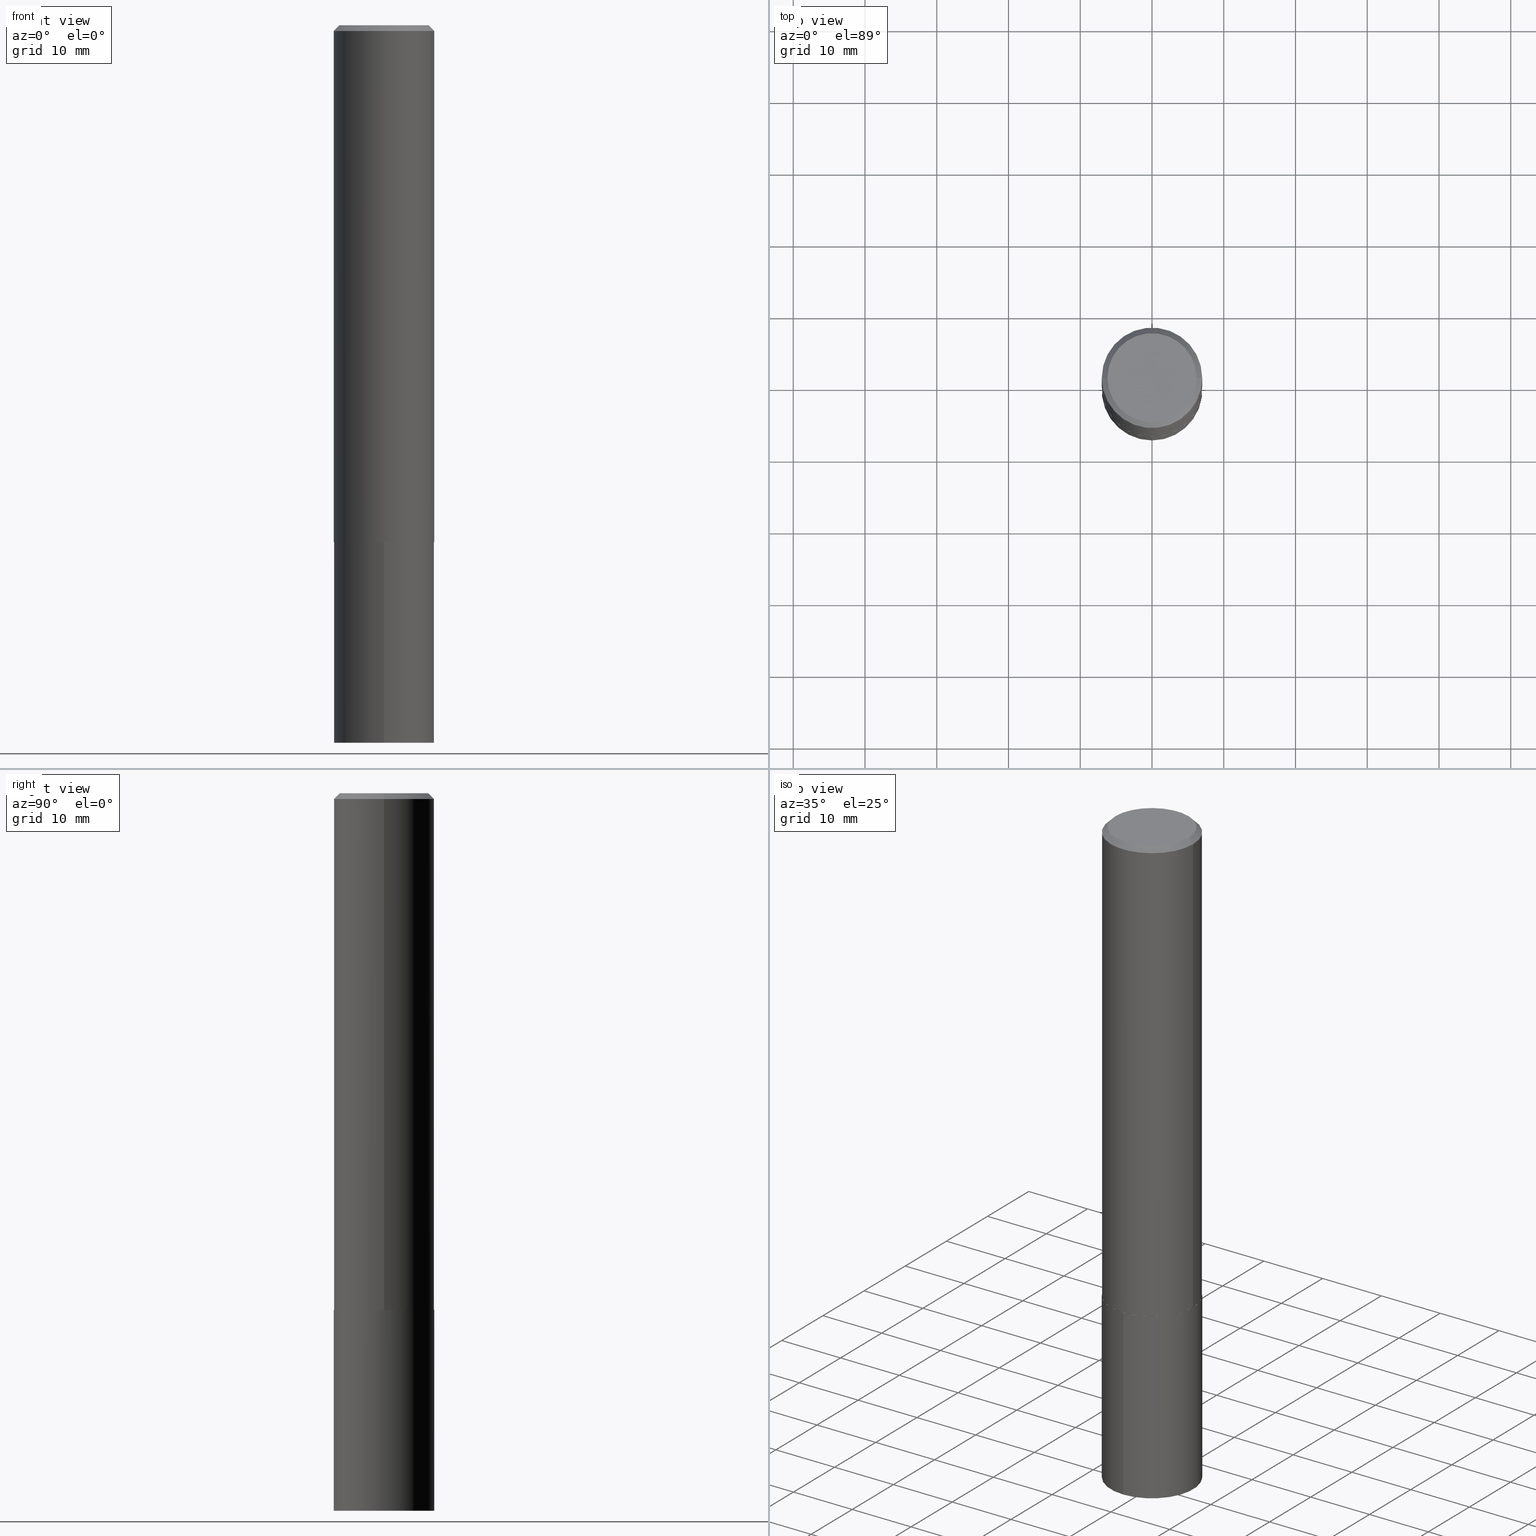
[diagram: canonical four-view strip — front | top / right | iso, engineering-drawing reading convention]
A machine part, canonical four-view strip (front | top / right | iso — engineering-drawing reading convention). The complete STEP part file that produces these views, byte-faithful:
ISO-10303-21;
HEADER;
FILE_DESCRIPTION (( 'STEP AP203' ),
    '1' );
FILE_NAME ('67172.STEP',
    '2024-04-23T12:52:25',
    ( '' ),
    ( '' ),
    'SwSTEP 2.0',
    'SolidWorks 2023',
    '' );
FILE_SCHEMA (( 'CONFIG_CONTROL_DESIGN' ));
ENDSEC;

DATA;
#1 = ORIENTED_EDGE ( 'NONE', *, *, #174, .T. ) ;
#2 = CARTESIAN_POINT ( 'NONE',  ( 1.958255779754932830E-15, 0.2755999999999901307, -2.835000000000000853 ) ) ;
#3 = CARTESIAN_POINT ( 'NONE',  ( 6.932904065534858171E-29, -9.898349595620313354E-15, -2.834999999999998632 ) ) ;
#4 = AXIS2_PLACEMENT_3D ( 'NONE', #164, #171, #78 ) ;
#5 = AXIS2_PLACEMENT_3D ( 'NONE', #157, #236, #239 ) ;
#6 = ADVANCED_BREP_SHAPE_REPRESENTATION ( '67172', ( #264, #17, #365 ), #95 ) ;
#7 = EDGE_CURVE ( 'NONE', #54, #135, #75, .T. ) ;
#8 = EDGE_CURVE ( 'NONE', #281, #116, #339, .T. ) ;
#9 = FACE_OUTER_BOUND ( 'NONE', #255, .T. ) ;
#10 = DIRECTION ( 'NONE',  ( 2.445468806185136597E-29, -3.491481338843145583E-15, -1.000000000000000000 ) ) ;
#11 = DIRECTION ( 'NONE',  ( -0.7071067811865450192, 2.468850131082230634E-15, -0.7071067811865500152 ) ) ;
#12 = DESIGN_CONTEXT ( 'detailed design', #21, 'design' ) ;
#13 = CARTESIAN_POINT ( 'NONE',  ( -0.2756000000000000116, 1.815395722131486248E-15, -0.03125000000000022204 ) ) ;
#14 = CARTESIAN_POINT ( 'NONE',  ( 7.642090019328606165E-31, -1.091087918388490760E-16, -0.03125000000000022204 ) ) ;
#15 = DIRECTION ( 'NONE',  ( -2.445991184823511877E-29, 3.490733262901045869E-15, 1.000000000000000000 ) ) ;
#16 = AXIS2_PLACEMENT_3D ( 'NONE', #289, #96, #211 ) ;
#17 = MANIFOLD_SOLID_BREP ( 'Body-Move/Copy2[2]', #168 ) ;
#18 = DIRECTION ( 'NONE',  ( 1.000000000000000000, -6.982962677686264344E-15, 0.000000000000000000 ) ) ;
#19 = VECTOR ( 'NONE', #11, 39.37007874015748143 ) ;
#20 = CARTESIAN_POINT ( 'NONE',  ( -1.924504513970265534E-15, -0.2756000000000099481, -2.834999999999998632 ) ) ;
#21 = APPLICATION_CONTEXT ( 'configuration controlled 3d designs of mechanical parts and assemblies' ) ;
#22 = CARTESIAN_POINT ( 'NONE',  ( -0.2751000000000005663, -7.940997302370164885E-15, -2.834999999999998632 ) ) ;
#23 = EDGE_CURVE ( 'NONE', #348, #245, #232, .T. ) ;
#24 = DATE_TIME_ROLE ( 'classification_date' ) ;
#25 = CARTESIAN_POINT ( 'NONE',  ( 0.2756000000000001782, -1.924504513970336532E-15, 1.343874319409360828E-29 ) ) ;
#26 = CC_DESIGN_APPROVAL ( #307, ( #316 ) ) ;
#27 = EDGE_CURVE ( 'NONE', #325, #135, #144, .T. ) ;
#28 = DIRECTION ( 'NONE',  ( -2.445468806185136877E-29, 3.491481338843145188E-15, 1.000000000000000000 ) ) ;
#29 = PERSON_AND_ORGANIZATION_ROLE ( 'design_owner' ) ;
#30 = VERTEX_POINT ( 'NONE', #2 ) ;
#31 = COORDINATED_UNIVERSAL_TIME_OFFSET ( 5, 0, .BEHIND. ) ;
#32 = ORIENTED_EDGE ( 'NONE', *, *, #154, .T. ) ;
#33 = CC_DESIGN_APPROVAL ( #205, ( #99 ) ) ;
#34 = DIRECTION ( 'NONE',  ( 1.000000000000000000, -6.982962677686268288E-15, 0.000000000000000000 ) ) ;
#35 = DIRECTION ( 'NONE',  ( -2.445991184823511877E-29, 3.490733262901046264E-15, 1.000000000000000000 ) ) ;
#36 = FACE_OUTER_BOUND ( 'NONE', #143, .T. ) ;
#37 = AXIS2_PLACEMENT_3D ( 'NONE', #229, #341, #92 ) ;
#38 = AXIS2_PLACEMENT_3D ( 'NONE', #338, #10, #231 ) ;
#39 = CARTESIAN_POINT ( 'NONE',  ( 0.000000000000000000, 0.000000000000000000, 0.000000000000000000 ) ) ;
#40 = CYLINDRICAL_SURFACE ( 'NONE', #292, 0.2756000000000000116 ) ;
#41 = CARTESIAN_POINT ( 'NONE',  ( 0.2756000000000003447, -1.182110836892123233E-14, -2.834499999999999353 ) ) ;
#42 = VECTOR ( 'NONE', #265, 39.37007874015748143 ) ;
#43 = CARTESIAN_POINT ( 'NONE',  ( 0.2443500000000000116, -1.838112362890078477E-15, 4.825108388652965328E-18 ) ) ;
#44 = CARTESIAN_POINT ( 'NONE',  ( -0.2756000000000003447, -7.938348075196056050E-15, -2.834499999999999353 ) ) ;
#45 = VERTEX_POINT ( 'NONE', #138 ) ;
#46 = PLANE ( 'NONE',  #266 ) ;
#47 = AXIS2_PLACEMENT_3D ( 'NONE', #346, #324, #215 ) ;
#48 =( NAMED_UNIT ( * ) PLANE_ANGLE_UNIT ( ) SI_UNIT ( $, .RADIAN. ) );
#49 = CARTESIAN_POINT ( 'NONE',  ( 0.2751000000000005663, -1.181936262825181003E-14, -2.834999999999998632 ) ) ;
#50 = CC_DESIGN_PERSON_AND_ORGANIZATION_ASSIGNMENT ( #334, #299, ( #316 ) ) ;
#51 = EDGE_CURVE ( 'NONE', #362, #285, #349, .T. ) ;
#52 = CALENDAR_DATE ( 2024, 23, 4 ) ;
#53 = ORIENTED_EDGE ( 'NONE', *, *, #217, .F. ) ;
#54 = VERTEX_POINT ( 'NONE', #345 ) ;
#55 = MECHANICAL_CONTEXT ( 'NONE', #343, 'mechanical' ) ;
#56 = EDGE_LOOP ( 'NONE', ( #106, #105, #309, #162 ) ) ;
#57 = ORIENTED_EDGE ( 'NONE', *, *, #280, .T. ) ;
#58 = PERSON_AND_ORGANIZATION ( #127, #66 ) ;
#59 = ORIENTED_EDGE ( 'NONE', *, *, #241, .F. ) ;
#60 = AXIS2_PLACEMENT_3D ( 'NONE', #64, #35, #117 ) ;
#61 = DIMENSIONAL_EXPONENTS ( 1.000000000000000000, 0.000000000000000000, 0.000000000000000000, 0.000000000000000000, 0.000000000000000000, 0.000000000000000000, 0.000000000000000000 ) ;
#62 = ADVANCED_FACE ( 'NONE', ( #149 ), #204, .T. ) ;
#63 = DIRECTION ( 'NONE',  ( -2.445468806185136597E-29, 3.491481338843145583E-15, 1.000000000000000000 ) ) ;
#64 = CARTESIAN_POINT ( 'NONE',  ( 6.932904065534861534E-29, -9.898349595620316510E-15, -2.834999999999999520 ) ) ;
#65 = DIRECTION ( 'NONE',  ( 1.000000000000000000, -6.982962677686266711E-15, 4.876118653798672988E-29 ) ) ;
#66 = ORGANIZATION ( 'UNSPECIFIED', 'UNSPECIFIED', '' ) ;
#67 = EDGE_CURVE ( 'NONE', #285, #362, #132, .T. ) ;
#68 = LINE ( 'NONE', #263, #42 ) ;
#69 = CARTESIAN_POINT ( 'NONE',  ( 6.932904065534861534E-29, -9.898349595620316510E-15, -2.834999999999999520 ) ) ;
#70 = FACE_OUTER_BOUND ( 'NONE', #111, .T. ) ;
#71 = DIRECTION ( 'NONE',  ( -1.000000000000000000, 6.982962677686265922E-15, -4.876176775795935793E-29 ) ) ;
#72 = EDGE_CURVE ( 'NONE', #30, #45, #333, .T. ) ;
#73 = ORIENTED_EDGE ( 'NONE', *, *, #51, .T. ) ;
#74 = LENGTH_MEASURE_WITH_UNIT ( LENGTH_MEASURE( 0.02539999999999999897 ), #187 );
#75 = CIRCLE ( 'NONE', #103, 0.2756000000000000116 ) ;
#76 = CC_DESIGN_SECURITY_CLASSIFICATION ( #99, ( #316 ) ) ;
#77 = DIRECTION ( 'NONE',  ( 1.000000000000000000, -6.982962677686264344E-15, 0.000000000000000000 ) ) ;
#78 = DIRECTION ( 'NONE',  ( -6.982962677686265922E-15, -1.000000000000000000, 3.964946289788480896E-15 ) ) ;
#79 = APPROVAL_STATUS ( 'not_yet_approved' ) ;
#80 = ORIENTED_EDGE ( 'NONE', *, *, #320, .T. ) ;
#81 = SECURITY_CLASSIFICATION_LEVEL ( 'unclassified' ) ;
#82 = ORIENTED_EDGE ( 'NONE', *, *, #7, .T. ) ;
#83 = AXIS2_PLACEMENT_3D ( 'NONE', #287, #94, #261 ) ;
#84 = PRODUCT_RELATED_PRODUCT_CATEGORY ( 'detail', '', ( #218 ) ) ;
#85 = CALENDAR_DATE ( 2024, 23, 4 ) ;
#86 = EDGE_LOOP ( 'NONE', ( #296, #32, #57, #53 ) ) ;
#87 = DATE_AND_TIME ( #107, #158 ) ;
#88 = ORIENTED_EDGE ( 'NONE', *, *, #72, .T. ) ;
#89 = DIRECTION ( 'NONE',  ( -6.982962677686265922E-15, -1.000000000000000000, 3.964946289788480896E-15 ) ) ;
#90 = VECTOR ( 'NONE', #321, 39.37007874015748143 ) ;
#91 = FACE_OUTER_BOUND ( 'NONE', #198, .T. ) ;
#92 = DIRECTION ( 'NONE',  ( 1.000000000000000000, -6.982962677686266711E-15, 4.876118653798672988E-29 ) ) ;
#93 = UNCERTAINTY_MEASURE_WITH_UNIT (LENGTH_MEASURE( 1.000000000000000082E-05 ), #185, 'distance_accuracy_value', 'NONE');
#94 = DIRECTION ( 'NONE',  ( 2.445468806185136597E-29, -3.491481338843145583E-15, -1.000000000000000000 ) ) ;
#95 =( GEOMETRIC_REPRESENTATION_CONTEXT ( 3 ) GLOBAL_UNCERTAINTY_ASSIGNED_CONTEXT ( ( #93 ) ) GLOBAL_UNIT_ASSIGNED_CONTEXT ( ( #185, #48, #298 ) ) REPRESENTATION_CONTEXT ( 'NONE', 'WORKASPACE' ) );
#96 = DIRECTION ( 'NONE',  ( -2.438088387897960049E-29, 3.491481338843145188E-15, 1.000000000000000000 ) ) ;
#97 = ADVANCED_FACE ( 'NONE', ( #291 ), #40, .T. ) ;
#98 = DIRECTION ( 'NONE',  ( -2.445991184823512157E-29, 3.490733262901045869E-15, 1.000000000000000000 ) ) ;
#99 = SECURITY_CLASSIFICATION ( '', '', #81 ) ;
#100 = DIRECTION ( 'NONE',  ( -0.7071067811870304087, 7.493145998872099120E-15, 0.7071067811860646257 ) ) ;
#101 = DIRECTION ( 'NONE',  ( -2.445468806185136597E-29, 3.491481338843145583E-15, 1.000000000000000000 ) ) ;
#102 = DIRECTION ( 'NONE',  ( -2.445468806185136597E-29, 3.491481338843145583E-15, 1.000000000000000000 ) ) ;
#103 = AXIS2_PLACEMENT_3D ( 'NONE', #275, #332, #200 ) ;
#104 = CIRCLE ( 'NONE', #210, 0.2756000000000000116 ) ;
#105 = ORIENTED_EDGE ( 'NONE', *, *, #189, .T. ) ;
#106 = ORIENTED_EDGE ( 'NONE', *, *, #206, .T. ) ;
#107 = CALENDAR_DATE ( 2024, 23, 4 ) ;
#108 = EDGE_LOOP ( 'NONE', ( #306, #304, #301, #82 ) ) ;
#109 = AXIS2_PLACEMENT_3D ( 'NONE', #277, #256, #34 ) ;
#110 = DATE_AND_TIME ( #137, #133 ) ;
#111 = EDGE_LOOP ( 'NONE', ( #131, #192, #1, #360 ) ) ;
#112 = LOCAL_TIME ( 8, 52, 25.00000000000000000, #31 ) ;
#113 = DATE_AND_TIME ( #52, #170 ) ;
#114 = ORIENTED_EDGE ( 'NONE', *, *, #206, .F. ) ;
#115 = CC_DESIGN_PERSON_AND_ORGANIZATION_ASSIGNMENT ( #284, #139, ( #258 ) ) ;
#116 = VERTEX_POINT ( 'NONE', #311 ) ;
#117 = DIRECTION ( 'NONE',  ( -6.982962677686265922E-15, -1.000000000000000000, 3.964946289788480896E-15 ) ) ;
#118 = CARTESIAN_POINT ( 'NONE',  ( 6.931681331131768733E-29, -9.896603854950894217E-15, -2.834499999999999353 ) ) ;
#119 = DIRECTION ( 'NONE',  ( 1.000000000000000000, -6.982962677686267499E-15, 4.876176775795935793E-29 ) ) ;
#120 = DIRECTION ( 'NONE',  ( -2.445468806185136597E-29, 3.491481338843145583E-15, 1.000000000000000000 ) ) ;
#121 = APPROVAL_PERSON_ORGANIZATION ( #361, #307, #166 ) ;
#122 = CARTESIAN_POINT ( 'NONE',  ( 6.932904065534861534E-29, -9.898349595620316510E-15, -2.834999999999999520 ) ) ;
#123 = CC_DESIGN_PERSON_AND_ORGANIZATION_ASSIGNMENT ( #305, #254, ( #99 ) ) ;
#124 = CARTESIAN_POINT ( 'NONE',  ( 1.958255779754919025E-15, 0.2755999999999862449, -3.937000000000001609 ) ) ;
#125 = ORIENTED_EDGE ( 'NONE', *, *, #27, .T. ) ;
#126 = DIRECTION ( 'NONE',  ( 2.438088387897960049E-29, -3.491481338843145188E-15, -1.000000000000000000 ) ) ;
#127 = PERSON ( 'UNSPECIFIED', 'UNSPECIFIED', 'UNSPECIFIED', ('UNSPECIFIED'), ('UNSPECIFIED'), ('UNSPECIFIED') ) ;
#128 = CARTESIAN_POINT ( 'NONE',  ( 0.2756000000000003447, -1.182110836892123233E-14, -2.834499999999999353 ) ) ;
#129 = CARTESIAN_POINT ( 'NONE',  ( 6.931681331131768733E-29, -9.896603854950894217E-15, -2.834499999999999353 ) ) ;
#130 = COORDINATED_UNIVERSAL_TIME_OFFSET ( 5, 0, .BEHIND. ) ;
#131 = ORIENTED_EDGE ( 'NONE', *, *, #238, .F. ) ;
#132 = CIRCLE ( 'NONE', #37, 0.2443500000000000116 ) ;
#133 = LOCAL_TIME ( 8, 52, 25.00000000000000000, #130 ) ;
#134 = DATE_AND_TIME ( #85, #112 ) ;
#135 = VERTEX_POINT ( 'NONE', #209 ) ;
#136 = EDGE_CURVE ( 'NONE', #245, #348, #240, .T. ) ;
#137 = CALENDAR_DATE ( 2024, 23, 4 ) ;
#138 = CARTESIAN_POINT ( 'NONE',  ( -1.924504513970265534E-15, -0.2756000000000099481, -2.834999999999998632 ) ) ;
#139 = PERSON_AND_ORGANIZATION_ROLE ( 'creator' ) ;
#140 = ORIENTED_EDGE ( 'NONE', *, *, #72, .F. ) ;
#141 = APPROVAL_DATE_TIME ( #110, #307 ) ;
#142 = CIRCLE ( 'NONE', #60, 0.2756000000000000116 ) ;
#143 = EDGE_LOOP ( 'NONE', ( #250, #80, #125, #358 ) ) ;
#144 = LINE ( 'NONE', #25, #282 ) ;
#145 = FACE_OUTER_BOUND ( 'NONE', #86, .T. ) ;
#146 = FACE_OUTER_BOUND ( 'NONE', #108, .T. ) ;
#147 = AXIS2_PLACEMENT_3D ( 'NONE', #227, #190, #65 ) ;
#148 = AXIS2_PLACEMENT_3D ( 'NONE', #129, #182, #18 ) ;
#149 = FACE_OUTER_BOUND ( 'NONE', #300, .T. ) ;
#150 = ADVANCED_FACE ( 'NONE', ( #91 ), #202, .F. ) ;
#151 = CARTESIAN_POINT ( 'NONE',  ( 0.000000000000000000, 0.000000000000000000, 0.000000000000000000 ) ) ;
#152 = CYLINDRICAL_SURFACE ( 'NONE', #253, 0.2756000000000001782 ) ;
#153 = AXIS2_PLACEMENT_3D ( 'NONE', #69, #312, #176 ) ;
#154 = EDGE_CURVE ( 'NONE', #362, #135, #319, .T. ) ;
#155 = DIRECTION ( 'NONE',  ( -2.445468806185136597E-29, 3.491481338843145583E-15, 1.000000000000000000 ) ) ;
#156 = ORIENTED_EDGE ( 'NONE', *, *, #241, .T. ) ;
#157 = CARTESIAN_POINT ( 'NONE',  ( 6.932904065534861534E-29, -9.898349595620316510E-15, -2.834999999999999520 ) ) ;
#158 = LOCAL_TIME ( 8, 52, 25.00000000000000000, #249 ) ;
#159 = AXIS2_PLACEMENT_3D ( 'NONE', #262, #178, #173 ) ;
#160 = CARTESIAN_POINT ( 'NONE',  ( 4.177610574502128489E-29, -2.155095880247408992E-14, -3.937000000000000277 ) ) ;
#161 = APPROVAL_ROLE ( '' ) ;
#162 = ORIENTED_EDGE ( 'NONE', *, *, #322, .F. ) ;
#163 = AXIS2_PLACEMENT_3D ( 'NONE', #352, #155, #77 ) ;
#164 = CARTESIAN_POINT ( 'NONE',  ( 9.628386351210373593E-29, -1.374513765133727185E-14, -3.937000000000000721 ) ) ;
#165 = ORIENTED_EDGE ( 'NONE', *, *, #136, .F. ) ;
#166 = APPROVAL_ROLE ( '' ) ;
#167 = ORIENTED_EDGE ( 'NONE', *, *, #136, .T. ) ;
#168 = CLOSED_SHELL ( 'NONE', ( #237, #62, #228, #150, #356, #175, #207, #271 ) ) ;
#169 = APPROVAL_DATE_TIME ( #134, #257 ) ;
#170 = LOCAL_TIME ( 8, 52, 25.00000000000000000, #366 ) ;
#171 = DIRECTION ( 'NONE',  ( -2.445991184823511877E-29, 3.490733262901046264E-15, 1.000000000000000000 ) ) ;
#172 = LINE ( 'NONE', #41, #363 ) ;
#173 = DIRECTION ( 'NONE',  ( -6.982962677686265922E-15, -1.000000000000000000, 3.964946289788480896E-15 ) ) ;
#174 = EDGE_CURVE ( 'NONE', #245, #325, #172, .T. ) ;
#175 = ADVANCED_FACE ( 'NONE', ( #36 ), #152, .T. ) ;
#176 = DIRECTION ( 'NONE',  ( -6.982962677686265922E-15, -1.000000000000000000, 3.964946289788480896E-15 ) ) ;
#177 = AXIS2_PLACEMENT_3D ( 'NONE', #3, #63, #259 ) ;
#178 = DIRECTION ( 'NONE',  ( -2.445991184823511877E-29, 3.490733262901046264E-15, 1.000000000000000000 ) ) ;
#179 = DIRECTION ( 'NONE',  ( 0.7071067811865450192, -7.319954787623246579E-15, -0.7071067811865500152 ) ) ;
#180 = PLANE ( 'NONE',  #222 ) ;
#181 = ORIENTED_EDGE ( 'NONE', *, *, #238, .T. ) ;
#182 = DIRECTION ( 'NONE',  ( -2.445468806185136597E-29, 3.491481338843145583E-15, 1.000000000000000000 ) ) ;
#183 = VERTEX_POINT ( 'NONE', #288 ) ;
#184 = FACE_OUTER_BOUND ( 'NONE', #337, .T. ) ;
#185 =( CONVERSION_BASED_UNIT ( 'INCH', #74 ) LENGTH_UNIT ( ) NAMED_UNIT ( #61 ) );
#186 = CC_DESIGN_APPROVAL ( #257, ( #258 ) ) ;
#187 =( LENGTH_UNIT ( ) NAMED_UNIT ( * ) SI_UNIT ( $, .METRE. ) );
#188 = APPLICATION_PROTOCOL_DEFINITION ( 'international standard', 'config_control_design', 1994, #21 ) ;
#189 = EDGE_CURVE ( 'NONE', #281, #30, #68, .T. ) ;
#190 = DIRECTION ( 'NONE',  ( -2.445468806185136597E-29, 3.491481338843145583E-15, 1.000000000000000000 ) ) ;
#191 = APPROVAL_STATUS ( 'not_yet_approved' ) ;
#192 = ORIENTED_EDGE ( 'NONE', *, *, #23, .T. ) ;
#193 = AXIS2_PLACEMENT_3D ( 'NONE', #151, #120, #119 ) ;
#194 = CONICAL_SURFACE ( 'NONE', #326, 0.2756000000000003447, 0.7853981633981311772 ) ;
#195 = DIRECTION ( 'NONE',  ( 0.000000000000000000, 0.000000000000000000, 1.000000000000000000 ) ) ;
#196 = ORIENTED_EDGE ( 'NONE', *, *, #8, .F. ) ;
#197 = APPLICATION_PROTOCOL_DEFINITION ( 'international standard', 'config_control_design', 1994, #343 ) ;
#198 = EDGE_LOOP ( 'NONE', ( #165, #220 ) ) ;
#199 = APPROVAL_DATE_TIME ( #87, #205 ) ;
#200 = DIRECTION ( 'NONE',  ( 1.000000000000000000, -6.982962677686267499E-15, 0.000000000000000000 ) ) ;
#201 = VECTOR ( 'NONE', #98, 39.37007874015748143 ) ;
#202 = PLANE ( 'NONE',  #16 ) ;
#203 = EDGE_CURVE ( 'NONE', #45, #30, #142, .T. ) ;
#204 = CYLINDRICAL_SURFACE ( 'NONE', #193, 0.2756000000000001782 ) ;
#205 = APPROVAL ( #336, 'UNSPECIFIED' ) ;
#206 = EDGE_CURVE ( 'NONE', #116, #281, #310, .T. ) ;
#207 = ADVANCED_FACE ( 'NONE', ( #146 ), #351, .T. ) ;
#208 = CARTESIAN_POINT ( 'NONE',  ( 0.2756000000000000116, -1.999862040024683603E-15, -0.03125000000000022204 ) ) ;
#209 = CARTESIAN_POINT ( 'NONE',  ( 0.2756000000000000116, -2.033613305809184449E-15, -0.03125000000000022204 ) ) ;
#210 = AXIS2_PLACEMENT_3D ( 'NONE', #14, #101, #293 ) ;
#211 = DIRECTION ( 'NONE',  ( 1.000000000000000000, -6.982962677686265922E-15, 4.876176775795935793E-29 ) ) ;
#212 = CARTESIAN_POINT ( 'NONE',  ( -5.899826025441373866E-47, 8.423387948417039198E-33, 2.412554194320285792E-18 ) ) ;
#213 = FACE_OUTER_BOUND ( 'NONE', #279, .T. ) ;
#214 = CARTESIAN_POINT ( 'NONE',  ( -0.2756000000000001782, 1.958255779754837378E-15, -1.355658510874252848E-29 ) ) ;
#215 = DIRECTION ( 'NONE',  ( -6.982962677686265922E-15, -1.000000000000000000, 3.964946289788480896E-15 ) ) ;
#216 = DIRECTION ( 'NONE',  ( 1.000000000000000000, -6.982962677686264344E-15, 0.000000000000000000 ) ) ;
#217 = EDGE_CURVE ( 'NONE', #285, #54, #313, .T. ) ;
#218 = PRODUCT ( '67172', '67172', '', ( #55 ) ) ;
#219 = ORIENTED_EDGE ( 'NONE', *, *, #174, .F. ) ;
#220 = ORIENTED_EDGE ( 'NONE', *, *, #23, .F. ) ;
#221 = VECTOR ( 'NONE', #179, 39.37007874015748143 ) ;
#222 = AXIS2_PLACEMENT_3D ( 'NONE', #160, #15, #242 ) ;
#223 = COORDINATED_UNIVERSAL_TIME_OFFSET ( 5, 0, .BEHIND. ) ;
#224 = EDGE_LOOP ( 'NONE', ( #114, #196 ) ) ;
#225 = PERSON_AND_ORGANIZATION ( #127, #66 ) ;
#226 = EDGE_LOOP ( 'NONE', ( #353, #88 ) ) ;
#227 = CARTESIAN_POINT ( 'NONE',  ( -1.179965205088274773E-46, 1.684677589683407840E-32, 4.825108388640571583E-18 ) ) ;
#228 = ADVANCED_FACE ( 'NONE', ( #9 ), #194, .T. ) ;
#229 = CARTESIAN_POINT ( 'NONE',  ( -1.179965205088274773E-46, 1.684677589683407840E-32, 4.825108388640571583E-18 ) ) ;
#230 = DIRECTION ( 'NONE',  ( 1.000000000000000000, -6.982962677686264344E-15, 0.000000000000000000 ) ) ;
#231 = DIRECTION ( 'NONE',  ( -1.000000000000000000, 6.982962677686267499E-15, 0.000000000000000000 ) ) ;
#232 = CIRCLE ( 'NONE', #109, 0.2751000000000005663 ) ;
#233 = DIRECTION ( 'NONE',  ( -2.445468806185136597E-29, 3.491481338843145583E-15, 1.000000000000000000 ) ) ;
#234 = AXIS2_PLACEMENT_3D ( 'NONE', #243, #102, #216 ) ;
#235 = LINE ( 'NONE', #214, #90 ) ;
#236 = DIRECTION ( 'NONE',  ( 2.445991184823511877E-29, -3.490733262901045869E-15, -1.000000000000000000 ) ) ;
#237 = ADVANCED_FACE ( 'NONE', ( #145 ), #355, .T. ) ;
#238 = EDGE_CURVE ( 'NONE', #348, #183, #272, .T. ) ;
#239 = DIRECTION ( 'NONE',  ( 6.982962677686265922E-15, 1.000000000000000000, -3.490733262901045869E-15 ) ) ;
#240 = CIRCLE ( 'NONE', #177, 0.2751000000000005663 ) ;
#241 = EDGE_CURVE ( 'NONE', #325, #183, #283, .T. ) ;
#242 = DIRECTION ( 'NONE',  ( -6.982962677686265922E-15, -1.000000000000000000, 3.490733262901045869E-15 ) ) ;
#243 = CARTESIAN_POINT ( 'NONE',  ( 6.931681331131768733E-29, -9.896603854950894217E-15, -2.834499999999999353 ) ) ;
#244 = PERSON_AND_ORGANIZATION_ROLE ( 'design_supplier' ) ;
#245 = VERTEX_POINT ( 'NONE', #49 ) ;
#246 = APPROVAL_ROLE ( '' ) ;
#247 = ORIENTED_EDGE ( 'NONE', *, *, #67, .T. ) ;
#248 = PRODUCT_DEFINITION_SHAPE ( 'NONE', 'NONE',  #258 ) ;
#249 = COORDINATED_UNIVERSAL_TIME_OFFSET ( 5, 0, .BEHIND. ) ;
#250 = ORIENTED_EDGE ( 'NONE', *, *, #331, .F. ) ;
#251 = DATE_TIME_ROLE ( 'creation_date' ) ;
#252 = ORIENTED_EDGE ( 'NONE', *, *, #8, .T. ) ;
#253 = AXIS2_PLACEMENT_3D ( 'NONE', #39, #233, #290 ) ;
#254 = PERSON_AND_ORGANIZATION_ROLE ( 'classification_officer' ) ;
#255 = EDGE_LOOP ( 'NONE', ( #167, #181, #59, #219 ) ) ;
#256 = DIRECTION ( 'NONE',  ( -2.445468806185136597E-29, 3.491481338843145583E-15, 1.000000000000000000 ) ) ;
#257 = APPROVAL ( #79, 'UNSPECIFIED' ) ;
#258 = PRODUCT_DEFINITION ( 'UNKNOWN', '', #316, #12 ) ;
#259 = DIRECTION ( 'NONE',  ( 1.000000000000000000, -6.982962677686268288E-15, 0.000000000000000000 ) ) ;
#260 = LOCAL_TIME ( 8, 52, 25.00000000000000000, #223 ) ;
#261 = DIRECTION ( 'NONE',  ( -1.000000000000000000, 6.982962677686267499E-15, 0.000000000000000000 ) ) ;
#262 = CARTESIAN_POINT ( 'NONE',  ( 9.628386351210373593E-29, -1.374513765133727185E-14, -3.937000000000000721 ) ) ;
#263 = CARTESIAN_POINT ( 'NONE',  ( 1.958255779754905615E-15, 0.2755999999999901307, -2.835000000000000853 ) ) ;
#264 = MANIFOLD_SOLID_BREP ( 'Body-Move/Copy2[1]', #314 ) ;
#265 = DIRECTION ( 'NONE',  ( -2.445991184823512157E-29, 3.490733262901045869E-15, 1.000000000000000000 ) ) ;
#266 = AXIS2_PLACEMENT_3D ( 'NONE', #212, #126, #71 ) ;
#267 = ORIENTED_EDGE ( 'NONE', *, *, #189, .F. ) ;
#268 = CC_DESIGN_DATE_AND_TIME_ASSIGNMENT ( #113, #24, ( #99 ) ) ;
#269 = PLANE ( 'NONE',  #5 ) ;
#270 = ORIENTED_EDGE ( 'NONE', *, *, #322, .T. ) ;
#271 = ADVANCED_FACE ( 'NONE', ( #184 ), #46, .F. ) ;
#272 = LINE ( 'NONE', #44, #276 ) ;
#273 = CYLINDRICAL_SURFACE ( 'NONE', #47, 0.2756000000000000116 ) ;
#274 = PERSON_AND_ORGANIZATION ( #127, #66 ) ;
#275 = CARTESIAN_POINT ( 'NONE',  ( 7.642090019328606165E-31, -1.091087918388490760E-16, -0.03125000000000022204 ) ) ;
#276 = VECTOR ( 'NONE', #100, 39.37007874015748143 ) ;
#277 = CARTESIAN_POINT ( 'NONE',  ( 6.932904065534858171E-29, -9.898349595620313354E-15, -2.834999999999998632 ) ) ;
#278 = DIRECTION ( 'NONE',  ( 1.000000000000000000, 0.000000000000000000, 0.000000000000000000 ) ) ;
#279 = EDGE_LOOP ( 'NONE', ( #267, #252, #270, #140 ) ) ;
#280 = EDGE_CURVE ( 'NONE', #135, #54, #104, .T. ) ;
#281 = VERTEX_POINT ( 'NONE', #124 ) ;
#282 = VECTOR ( 'NONE', #28, 39.37007874015748143 ) ;
#283 = CIRCLE ( 'NONE', #163, 0.2756000000000003447 ) ;
#284 = PERSON_AND_ORGANIZATION ( #127, #66 ) ;
#285 = VERTEX_POINT ( 'NONE', #297 ) ;
#286 = ADVANCED_FACE ( 'NONE', ( #347 ), #269, .F. ) ;
#287 = CARTESIAN_POINT ( 'NONE',  ( 7.642090019328606165E-31, -1.091087918388490760E-16, -0.03125000000000022204 ) ) ;
#288 = CARTESIAN_POINT ( 'NONE',  ( -0.2756000000000003447, -7.938348075196056050E-15, -2.834499999999999353 ) ) ;
#289 = CARTESIAN_POINT ( 'NONE',  ( 1.086467963563776151E-28, -4.267823196464970131E-15, -2.834999999999999076 ) ) ;
#290 = DIRECTION ( 'NONE',  ( 1.000000000000000000, -6.982962677686267499E-15, 4.876176775795935793E-29 ) ) ;
#291 = FACE_OUTER_BOUND ( 'NONE', #56, .T. ) ;
#292 = AXIS2_PLACEMENT_3D ( 'NONE', #122, #340, #89 ) ;
#293 = DIRECTION ( 'NONE',  ( 1.000000000000000000, -6.982962677686267499E-15, 0.000000000000000000 ) ) ;
#294 = APPROVAL_PERSON_ORGANIZATION ( #274, #257, #161 ) ;
#295 = ORIENTED_EDGE ( 'NONE', *, *, #331, .T. ) ;
#296 = ORIENTED_EDGE ( 'NONE', *, *, #51, .F. ) ;
#297 = CARTESIAN_POINT ( 'NONE',  ( -0.2443500000000000116, 1.760841326212062881E-15, 4.825108388628448239E-18 ) ) ;
#298 =( NAMED_UNIT ( * ) SI_UNIT ( $, .STERADIAN. ) SOLID_ANGLE_UNIT ( ) );
#299 = PERSON_AND_ORGANIZATION_ROLE ( 'creator' ) ;
#300 = EDGE_LOOP ( 'NONE', ( #156, #295, #335, #330 ) ) ;
#301 = ORIENTED_EDGE ( 'NONE', *, *, #217, .T. ) ;
#302 = CC_DESIGN_DATE_AND_TIME_ASSIGNMENT ( #357, #251, ( #258 ) ) ;
#303 = CARTESIAN_POINT ( 'NONE',  ( 0.000000000000000000, 0.000000000000000000, 0.000000000000000000 ) ) ;
#304 = ORIENTED_EDGE ( 'NONE', *, *, #67, .F. ) ;
#305 = PERSON_AND_ORGANIZATION ( #127, #66 ) ;
#306 = ORIENTED_EDGE ( 'NONE', *, *, #154, .F. ) ;
#307 = APPROVAL ( #191, 'UNSPECIFIED' ) ;
#308 = SHAPE_DEFINITION_REPRESENTATION ( #248, #6 ) ;
#309 = ORIENTED_EDGE ( 'NONE', *, *, #203, .F. ) ;
#310 = CIRCLE ( 'NONE', #159, 0.2756000000000000116 ) ;
#311 = CARTESIAN_POINT ( 'NONE',  ( -1.924504513970238713E-15, -0.2756000000000137784, -3.936999999999999389 ) ) ;
#312 = DIRECTION ( 'NONE',  ( -2.445991184823511877E-29, 3.490733262901046264E-15, 1.000000000000000000 ) ) ;
#313 = LINE ( 'NONE', #13, #19 ) ;
#314 = CLOSED_SHELL ( 'NONE', ( #97, #318, #364, #286 ) ) ;
#315 = APPROVAL_PERSON_ORGANIZATION ( #225, #205, #246 ) ;
#316 = PRODUCT_DEFINITION_FORMATION_WITH_SPECIFIED_SOURCE ( 'ANY', '', #218, .NOT_KNOWN. ) ;
#317 = DIRECTION ( 'NONE',  ( 0.7071067811870304087, -2.468850131087314842E-15, 0.7071067811860646257 ) ) ;
#318 = ADVANCED_FACE ( 'NONE', ( #354 ), #180, .F. ) ;
#319 = LINE ( 'NONE', #208, #221 ) ;
#320 = EDGE_CURVE ( 'NONE', #183, #325, #344, .T. ) ;
#321 = DIRECTION ( 'NONE',  ( -2.445468806185136877E-29, 3.491481338843145188E-15, 1.000000000000000000 ) ) ;
#322 = EDGE_CURVE ( 'NONE', #116, #45, #350, .T. ) ;
#323 = CONICAL_SURFACE ( 'NONE', #234, 0.2756000000000003447, 0.7853981633981311772 ) ;
#324 = DIRECTION ( 'NONE',  ( -2.445991184823511877E-29, 3.490733262901046264E-15, 1.000000000000000000 ) ) ;
#325 = VERTEX_POINT ( 'NONE', #128 ) ;
#326 = AXIS2_PLACEMENT_3D ( 'NONE', #118, #342, #230 ) ;
#327 = CALENDAR_DATE ( 2024, 23, 4 ) ;
#328 = CC_DESIGN_PERSON_AND_ORGANIZATION_ASSIGNMENT ( #58, #29, ( #218 ) ) ;
#329 = CC_DESIGN_PERSON_AND_ORGANIZATION_ASSIGNMENT ( #359, #244, ( #316 ) ) ;
#330 = ORIENTED_EDGE ( 'NONE', *, *, #27, .F. ) ;
#331 = EDGE_CURVE ( 'NONE', #183, #54, #235, .T. ) ;
#332 = DIRECTION ( 'NONE',  ( -2.445468806185136597E-29, 3.491481338843145583E-15, 1.000000000000000000 ) ) ;
#333 = CIRCLE ( 'NONE', #153, 0.2756000000000000116 ) ;
#334 = PERSON_AND_ORGANIZATION ( #127, #66 ) ;
#335 = ORIENTED_EDGE ( 'NONE', *, *, #280, .F. ) ;
#336 = APPROVAL_STATUS ( 'not_yet_approved' ) ;
#337 = EDGE_LOOP ( 'NONE', ( #247, #73 ) ) ;
#338 = CARTESIAN_POINT ( 'NONE',  ( 7.642090019328606165E-31, -1.091087918388490760E-16, -0.03125000000000022204 ) ) ;
#339 = CIRCLE ( 'NONE', #4, 0.2756000000000000116 ) ;
#340 = DIRECTION ( 'NONE',  ( -2.445991184823511877E-29, 3.490733262901046264E-15, 1.000000000000000000 ) ) ;
#341 = DIRECTION ( 'NONE',  ( -2.445468806185136597E-29, 3.491481338843145583E-15, 1.000000000000000000 ) ) ;
#342 = DIRECTION ( 'NONE',  ( -2.445468806185136597E-29, 3.491481338843145583E-15, 1.000000000000000000 ) ) ;
#343 = APPLICATION_CONTEXT ( 'configuration controlled 3d designs of mechanical parts and assemblies' ) ;
#344 = CIRCLE ( 'NONE', #148, 0.2756000000000003447 ) ;
#345 = CARTESIAN_POINT ( 'NONE',  ( -0.2756000000000000116, -3.044600543640032703E-15, -0.03125000000000022204 ) ) ;
#346 = CARTESIAN_POINT ( 'NONE',  ( 6.932904065534861534E-29, -9.898349595620316510E-15, -2.834999999999999520 ) ) ;
#347 = FACE_OUTER_BOUND ( 'NONE', #226, .T. ) ;
#348 = VERTEX_POINT ( 'NONE', #22 ) ;
#349 = CIRCLE ( 'NONE', #147, 0.2443500000000000116 ) ;
#350 = LINE ( 'NONE', #20, #201 ) ;
#351 = CONICAL_SURFACE ( 'NONE', #83, 0.2756000000000000116, 0.7853981633974447263 ) ;
#352 = CARTESIAN_POINT ( 'NONE',  ( 6.931681331131768733E-29, -9.896603854950894217E-15, -2.834499999999999353 ) ) ;
#353 = ORIENTED_EDGE ( 'NONE', *, *, #203, .T. ) ;
#354 = FACE_OUTER_BOUND ( 'NONE', #224, .T. ) ;
#355 = CONICAL_SURFACE ( 'NONE', #38, 0.2756000000000000116, 0.7853981633974447263 ) ;
#356 = ADVANCED_FACE ( 'NONE', ( #70 ), #323, .T. ) ;
#357 = DATE_AND_TIME ( #327, #260 ) ;
#358 = ORIENTED_EDGE ( 'NONE', *, *, #7, .F. ) ;
#359 = PERSON_AND_ORGANIZATION ( #127, #66 ) ;
#360 = ORIENTED_EDGE ( 'NONE', *, *, #320, .F. ) ;
#361 = PERSON_AND_ORGANIZATION ( #127, #66 ) ;
#362 = VERTEX_POINT ( 'NONE', #43 ) ;
#363 = VECTOR ( 'NONE', #317, 39.37007874015748143 ) ;
#364 = ADVANCED_FACE ( 'NONE', ( #213 ), #273, .T. ) ;
#365 = AXIS2_PLACEMENT_3D ( 'NONE', #303, #195, #278 ) ;
#366 = COORDINATED_UNIVERSAL_TIME_OFFSET ( 5, 0, .BEHIND. ) ;
ENDSEC;
END-ISO-10303-21;
